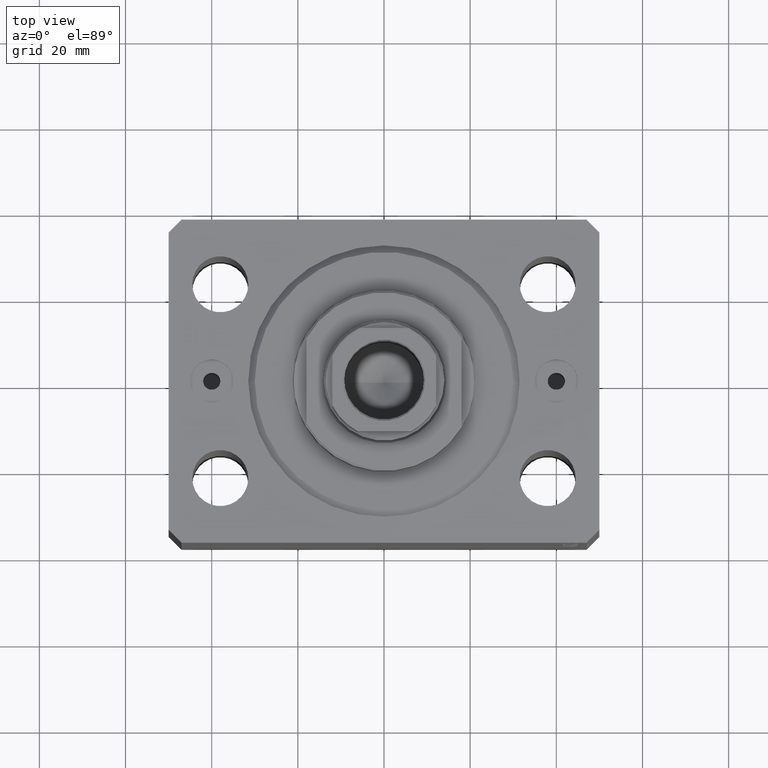
[diagram: clean part render]
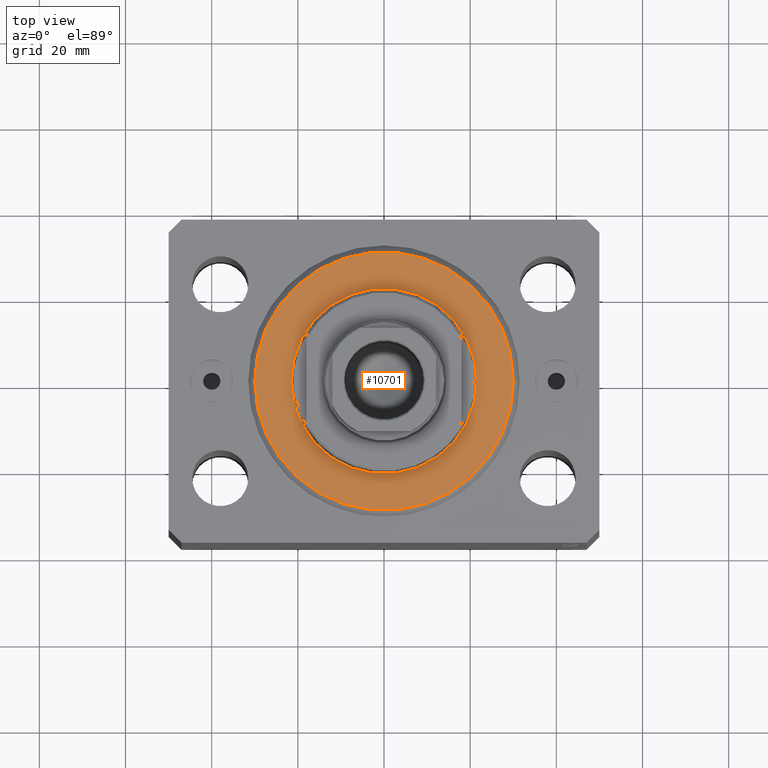
[diagram: same view with one face highlighted and labeled with its STEP entity id]
A machine part, top view. The second image highlights one B-rep face of the part: STEP entity #10701.
In plain terms, the highlighted planar face has unit normal (0, 0, -1).
Its self-contained STEP definition (entity closure, byte-faithful):
#1580 = VERTEX_POINT ( 'NONE', #18456 ) ;
#2553 = CIRCLE ( 'NONE', #14037, 30.00000000000002132 ) ;
#5360 = DIRECTION ( 'NONE',  ( 1.000000000000000000, 0.000000000000000000, 0.000000000000000000 ) ) ;
#5767 = CARTESIAN_POINT ( 'NONE',  ( 0.000000000000000000, 0.000000000000000000, 0.000000000000000000 ) ) ;
#6166 = EDGE_CURVE ( 'NONE', #6724, #13081, #2553, .T. ) ;
#6724 = VERTEX_POINT ( 'NONE', #18816 ) ;
#6725 = CARTESIAN_POINT ( 'NONE',  ( -21.50000000000000000, 2.632990618166809630E-15, -2.168404344971008868E-16 ) ) ;
#7340 = EDGE_LOOP ( 'NONE', ( #14429, #42311 ) ) ;
#7495 = CIRCLE ( 'NONE', #25469, 21.50000000000000000 ) ;
#8512 = CARTESIAN_POINT ( 'NONE',  ( 0.000000000000000000, 0.000000000000000000, 0.000000000000000000 ) ) ;
#8728 = CARTESIAN_POINT ( 'NONE',  ( 30.00000000000002132, 0.000000000000000000, 0.000000000000000000 ) ) ;
#10354 = AXIS2_PLACEMENT_3D ( 'NONE', #13589, #20111, #27321 ) ;
#10701 = ADVANCED_FACE ( 'NONE', ( #29602, #16105 ), #35897, .F. ) ;
#11805 = CIRCLE ( 'NONE', #10354, 21.50000000000000000 ) ;
#12518 = EDGE_CURVE ( 'NONE', #13081, #6724, #39325, .T. ) ;
#13081 = VERTEX_POINT ( 'NONE', #8728 ) ;
#13589 = CARTESIAN_POINT ( 'NONE',  ( 0.000000000000000000, 0.000000000000000000, 0.000000000000000000 ) ) ;
#14037 = AXIS2_PLACEMENT_3D ( 'NONE', #26049, #19301, #5360 ) ;
#14429 = ORIENTED_EDGE ( 'NONE', *, *, #33890, .T. ) ;
#16105 = FACE_OUTER_BOUND ( 'NONE', #26136, .T. ) ;
#18456 = CARTESIAN_POINT ( 'NONE',  ( 21.50000000000000000, 0.000000000000000000, -2.168404344971008868E-16 ) ) ;
#18816 = CARTESIAN_POINT ( 'NONE',  ( -30.00000000000002132, 3.765788907378112117E-15, 0.000000000000000000 ) ) ;
#19026 = ORIENTED_EDGE ( 'NONE', *, *, #6166, .T. ) ;
#19172 = AXIS2_PLACEMENT_3D ( 'NONE', #5767, #29824, #36791 ) ;
#19301 = DIRECTION ( 'NONE',  ( -0.000000000000000000, -0.000000000000000000, -1.000000000000000000 ) ) ;
#20111 = DIRECTION ( 'NONE',  ( 0.000000000000000000, 0.000000000000000000, 1.000000000000000000 ) ) ;
#21727 = DIRECTION ( 'NONE',  ( 1.000000000000000000, 0.000000000000000000, 0.000000000000000000 ) ) ;
#21762 = VERTEX_POINT ( 'NONE', #6725 ) ;
#25469 = AXIS2_PLACEMENT_3D ( 'NONE', #8512, #28539, #25598 ) ;
#25538 = CARTESIAN_POINT ( 'NONE',  ( 0.000000000000000000, 0.000000000000000000, 0.000000000000000000 ) ) ;
#25598 = DIRECTION ( 'NONE',  ( 1.000000000000000000, 0.000000000000000000, 0.000000000000000000 ) ) ;
#26049 = CARTESIAN_POINT ( 'NONE',  ( 0.000000000000000000, 0.000000000000000000, 0.000000000000000000 ) ) ;
#26136 = EDGE_LOOP ( 'NONE', ( #43903, #19026 ) ) ;
#27321 = DIRECTION ( 'NONE',  ( 1.000000000000000000, 0.000000000000000000, 0.000000000000000000 ) ) ;
#28539 = DIRECTION ( 'NONE',  ( 0.000000000000000000, 0.000000000000000000, 1.000000000000000000 ) ) ;
#29602 = FACE_BOUND ( 'NONE', #7340, .T. ) ;
#29824 = DIRECTION ( 'NONE',  ( 0.000000000000000000, 0.000000000000000000, 1.000000000000000000 ) ) ;
#33591 = AXIS2_PLACEMENT_3D ( 'NONE', #25538, #39923, #21727 ) ;
#33890 = EDGE_CURVE ( 'NONE', #1580, #21762, #7495, .T. ) ;
#35897 = PLANE ( 'NONE',  #19172 ) ;
#36791 = DIRECTION ( 'NONE',  ( 1.000000000000000000, 0.000000000000000000, -0.000000000000000000 ) ) ;
#37251 = EDGE_CURVE ( 'NONE', #21762, #1580, #11805, .T. ) ;
#39325 = CIRCLE ( 'NONE', #33591, 30.00000000000002132 ) ;
#39923 = DIRECTION ( 'NONE',  ( -0.000000000000000000, -0.000000000000000000, -1.000000000000000000 ) ) ;
#42311 = ORIENTED_EDGE ( 'NONE', *, *, #37251, .T. ) ;
#43903 = ORIENTED_EDGE ( 'NONE', *, *, #12518, .T. ) ;